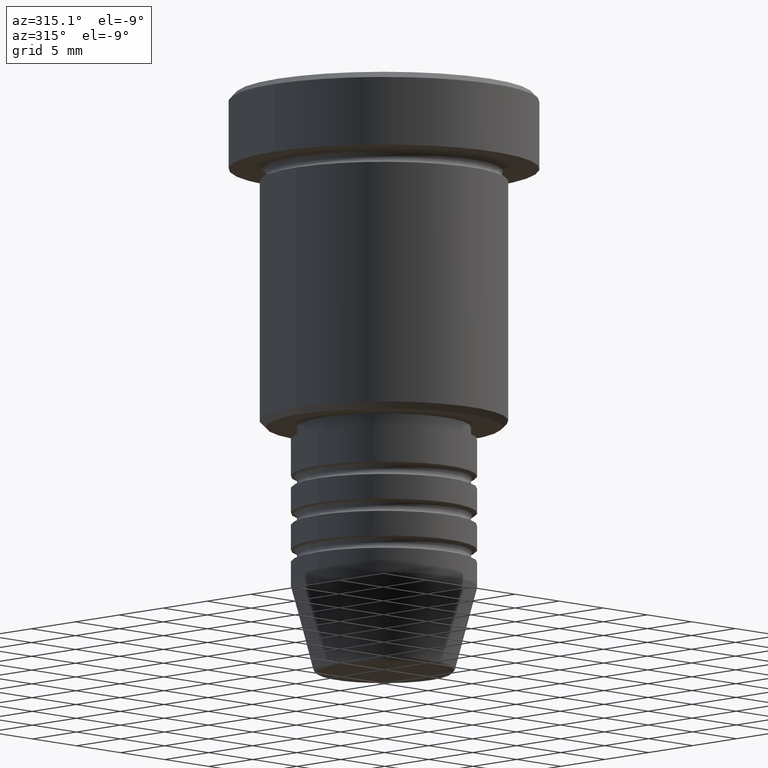
[diagram: clean part render]
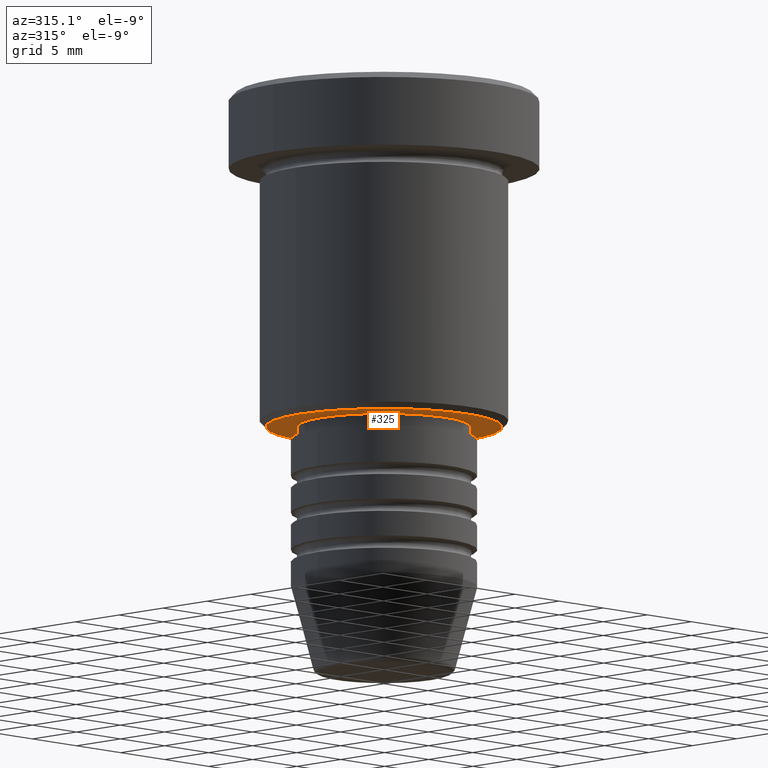
[diagram: same view with one face highlighted and labeled with its STEP entity id]
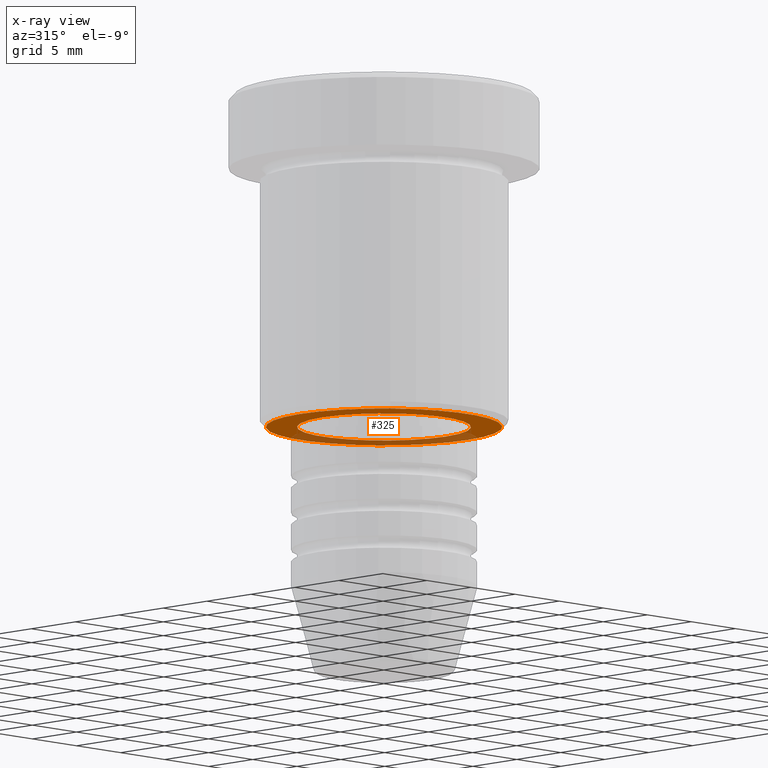
[diagram: x-ray of the same camera — body ghosted, the highlighted face saturated]
A machine part, auxiliary view. The second image highlights one B-rep face of the part: STEP entity #325.
The next image is the same camera in x-ray: the body ghosted, the highlighted face saturated — about 33% of this face is hidden behind the body in this view.
In plain terms, the highlighted planar face has unit normal (0, 0, -1).
Its self-contained STEP definition (entity closure, byte-faithful):
#9 = DIRECTION ( 'NONE',  ( 0.000000000000000000, 0.000000000000000000, -1.000000000000000000 ) ) ;
#43 = FACE_OUTER_BOUND ( 'NONE', #746, .T. ) ;
#86 = DIRECTION ( 'NONE',  ( 1.000000000000000000, 0.000000000000000000, 0.000000000000000000 ) ) ;
#94 = EDGE_CURVE ( 'NONE', #275, #1033, #639, .T. ) ;
#130 = CARTESIAN_POINT ( 'NONE',  ( 0.000000000000000000, 0.000000000000000000, -27.00000000000000000 ) ) ;
#169 = CARTESIAN_POINT ( 'NONE',  ( 0.000000000000000000, 0.000000000000000000, -27.00000000000000000 ) ) ;
#205 = EDGE_CURVE ( 'NONE', #715, #1155, #827, .T. ) ;
#275 = VERTEX_POINT ( 'NONE', #396 ) ;
#320 = CARTESIAN_POINT ( 'NONE',  ( 6.999999999999999112, 0.000000000000000000, -27.00000000000000000 ) ) ;
#322 = CARTESIAN_POINT ( 'NONE',  ( -6.999999999999999112, 8.572527594031472204E-16, -27.00000000000000000 ) ) ;
#325 = ADVANCED_FACE ( 'NONE', ( #43, #599 ), #955, .T. ) ;
#329 = CARTESIAN_POINT ( 'NONE',  ( 0.000000000000000000, 0.000000000000000000, -27.00000000000000000 ) ) ;
#346 = DIRECTION ( 'NONE',  ( -0.000000000000000000, -0.000000000000000000, 1.000000000000000000 ) ) ;
#396 = CARTESIAN_POINT ( 'NONE',  ( -9.500000000000015987, 1.194030629168670258E-15, -27.00000000000000000 ) ) ;
#464 = CARTESIAN_POINT ( 'NONE',  ( 0.000000000000000000, 0.000000000000000000, -27.00000000000000000 ) ) ;
#479 = ORIENTED_EDGE ( 'NONE', *, *, #94, .T. ) ;
#512 = CARTESIAN_POINT ( 'NONE',  ( 0.000000000000000000, 10.00000000000000000, -27.00000000000000000 ) ) ;
#515 = DIRECTION ( 'NONE',  ( 0.000000000000000000, 0.000000000000000000, -1.000000000000000000 ) ) ;
#599 = FACE_BOUND ( 'NONE', #727, .T. ) ;
#631 = DIRECTION ( 'NONE',  ( 0.000000000000000000, 0.000000000000000000, -1.000000000000000000 ) ) ;
#639 = CIRCLE ( 'NONE', #672, 9.500000000000015987 ) ;
#672 = AXIS2_PLACEMENT_3D ( 'NONE', #464, #9, #735 ) ;
#712 = CIRCLE ( 'NONE', #807, 6.999999999999999112 ) ;
#715 = VERTEX_POINT ( 'NONE', #320 ) ;
#727 = EDGE_LOOP ( 'NONE', ( #772, #1015 ) ) ;
#733 = CIRCLE ( 'NONE', #885, 9.500000000000015987 ) ;
#735 = DIRECTION ( 'NONE',  ( -1.000000000000000000, 0.000000000000000000, 0.000000000000000000 ) ) ;
#746 = EDGE_LOOP ( 'NONE', ( #1070, #479 ) ) ;
#747 = EDGE_CURVE ( 'NONE', #1033, #275, #733, .T. ) ;
#772 = ORIENTED_EDGE ( 'NONE', *, *, #205, .T. ) ;
#807 = AXIS2_PLACEMENT_3D ( 'NONE', #329, #346, #86 ) ;
#827 = CIRCLE ( 'NONE', #1124, 6.999999999999999112 ) ;
#832 = EDGE_CURVE ( 'NONE', #1155, #715, #712, .T. ) ;
#850 = CARTESIAN_POINT ( 'NONE',  ( 9.500000000000015987, 0.000000000000000000, -27.00000000000000000 ) ) ;
#856 = DIRECTION ( 'NONE',  ( 1.000000000000000000, 0.000000000000000000, 0.000000000000000000 ) ) ;
#885 = AXIS2_PLACEMENT_3D ( 'NONE', #169, #631, #980 ) ;
#955 = PLANE ( 'NONE',  #1048 ) ;
#980 = DIRECTION ( 'NONE',  ( -1.000000000000000000, 0.000000000000000000, 0.000000000000000000 ) ) ;
#1015 = ORIENTED_EDGE ( 'NONE', *, *, #832, .T. ) ;
#1033 = VERTEX_POINT ( 'NONE', #850 ) ;
#1048 = AXIS2_PLACEMENT_3D ( 'NONE', #512, #515, #1156 ) ;
#1070 = ORIENTED_EDGE ( 'NONE', *, *, #747, .T. ) ;
#1072 = DIRECTION ( 'NONE',  ( -0.000000000000000000, -0.000000000000000000, 1.000000000000000000 ) ) ;
#1124 = AXIS2_PLACEMENT_3D ( 'NONE', #130, #1072, #856 ) ;
#1155 = VERTEX_POINT ( 'NONE', #322 ) ;
#1156 = DIRECTION ( 'NONE',  ( -1.000000000000000000, 0.000000000000000000, -0.000000000000000000 ) ) ;